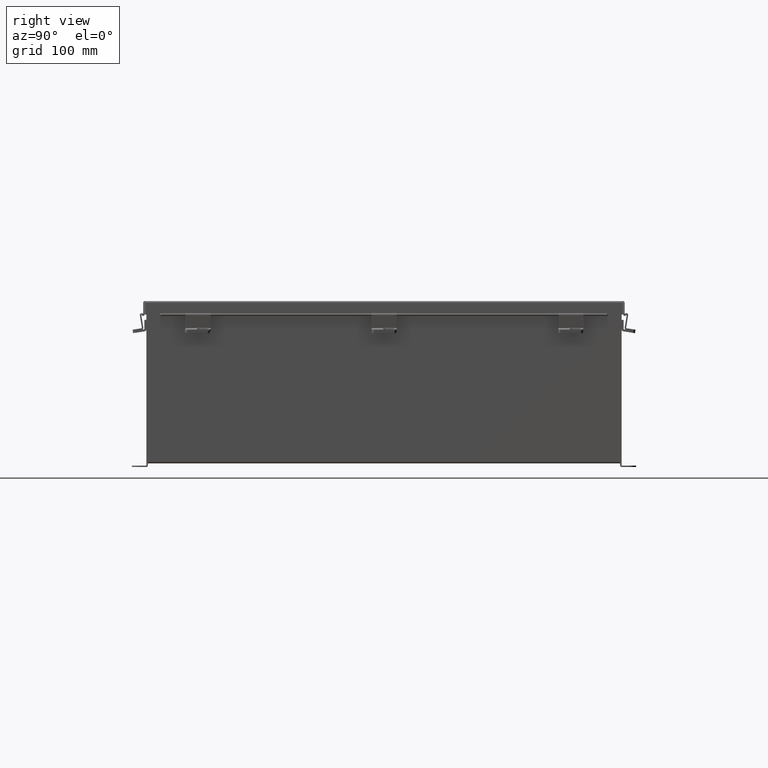
[diagram: clean part render]
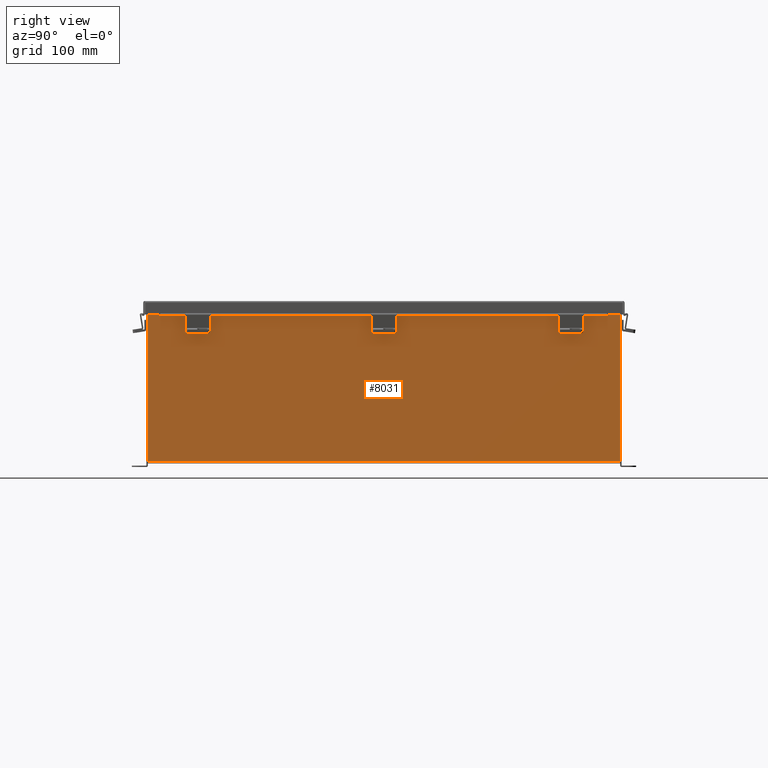
[diagram: same view with one face highlighted and labeled with its STEP entity id]
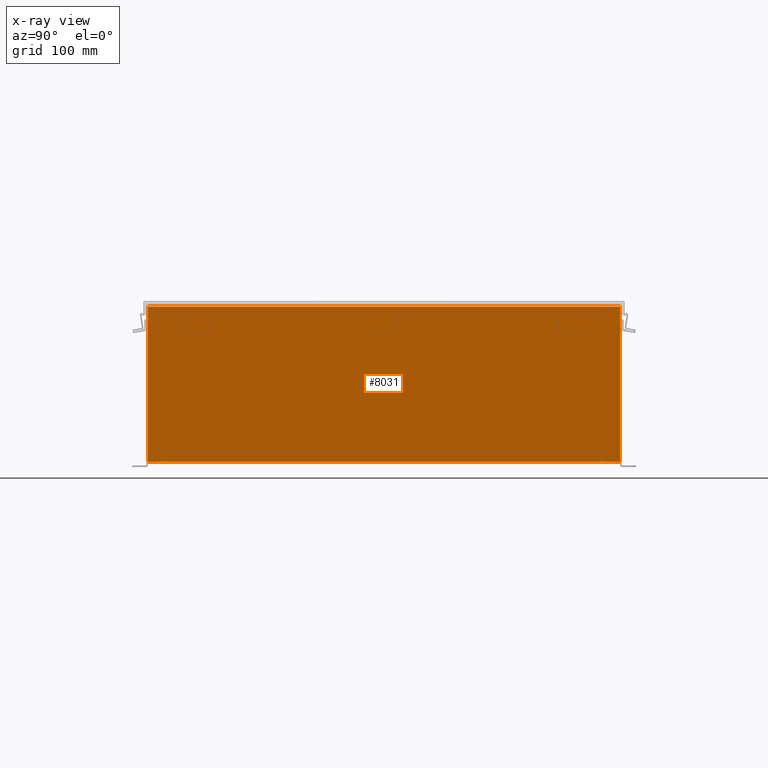
[diagram: x-ray of the same camera — body ghosted, the highlighted face saturated]
A machine part, right view. The second image highlights one B-rep face of the part: STEP entity #8031.
The next image is the same camera in x-ray: the body ghosted, the highlighted face saturated — about 0% of this face is hidden behind the body in this view.
In plain terms, the highlighted planar face has unit normal (-1, 0, 0).
Its self-contained STEP definition (entity closure, byte-faithful):
#132 = ORIENTED_EDGE ( 'NONE', *, *, #2894, .T. ) ;
#165 = DIRECTION ( 'NONE',  ( 3.618986973493534200E-015, 0.0000000000000000000, 1.000000000000000000 ) ) ;
#187 = EDGE_CURVE ( 'NONE', #790, #3802, #8609, .T. ) ;
#293 = CARTESIAN_POINT ( 'NONE',  ( 12.00000000000000200, -11.92530000000000000, 0.01299999999999982600 ) ) ;
#649 = EDGE_CURVE ( 'NONE', #4219, #790, #5749, .T. ) ;
#790 = VERTEX_POINT ( 'NONE', #4394 ) ;
#864 = LINE ( 'NONE', #293, #7038 ) ;
#1329 = CARTESIAN_POINT ( 'NONE',  ( 12.00000000000000200, -11.92530000000000000, 0.01299999999999984300 ) ) ;
#1715 = VECTOR ( 'NONE', #4971, 39.37007874015748100 ) ;
#2013 = AXIS2_PLACEMENT_3D ( 'NONE', #2965, #5460, #165 ) ;
#2193 = CARTESIAN_POINT ( 'NONE',  ( 12.00000000000000200, 11.92529999999999800, 0.01299999999999982600 ) ) ;
#2373 = VECTOR ( 'NONE', #8399, 39.37007874015748100 ) ;
#2894 = EDGE_CURVE ( 'NONE', #8175, #4219, #7910, .T. ) ;
#2965 = CARTESIAN_POINT ( 'NONE',  ( 12.00000000000000200, 0.0000000000000000000, -4.369249384866780800E-014 ) ) ;
#3802 = VERTEX_POINT ( 'NONE', #1329 ) ;
#4219 = VERTEX_POINT ( 'NONE', #8893 ) ;
#4394 = CARTESIAN_POINT ( 'NONE',  ( 12.00000000000003000, -11.92530000000000000, 7.837600000000000100 ) ) ;
#4603 = ORIENTED_EDGE ( 'NONE', *, *, #649, .T. ) ;
#4758 = ORIENTED_EDGE ( 'NONE', *, *, #187, .T. ) ;
#4971 = DIRECTION ( 'NONE',  ( -0.0000000000000000000, -1.000000000000000000, -0.0000000000000000000 ) ) ;
#5139 = ORIENTED_EDGE ( 'NONE', *, *, #9963, .F. ) ;
#5358 = CARTESIAN_POINT ( 'NONE',  ( 12.00000000000002700, 11.92530000000000000, 7.837600000000000100 ) ) ;
#5379 = EDGE_LOOP ( 'NONE', ( #4603, #4758, #5139, #132 ) ) ;
#5436 = FACE_OUTER_BOUND ( 'NONE', #5379, .T. ) ;
#5460 = DIRECTION ( 'NONE',  ( -1.000000000000000000, 0.0000000000000000000, 3.618986973493534200E-015 ) ) ;
#5529 = VECTOR ( 'NONE', #7584, 39.37007874015748100 ) ;
#5692 = DIRECTION ( 'NONE',  ( -0.0000000000000000000, -1.000000000000000000, -0.0000000000000000000 ) ) ;
#5749 = LINE ( 'NONE', #5358, #1715 ) ;
#6666 = CARTESIAN_POINT ( 'NONE',  ( 12.00000000000000200, -11.92530000000000000, -4.369249384866780800E-014 ) ) ;
#6964 = PLANE ( 'NONE',  #2013 ) ;
#7038 = VECTOR ( 'NONE', #5692, 39.37007874015748100 ) ;
#7584 = DIRECTION ( 'NONE',  ( -3.618986973493534200E-015, 0.0000000000000000000, -1.000000000000000000 ) ) ;
#7910 = LINE ( 'NONE', #8220, #2373 ) ;
#8031 = ADVANCED_FACE ( 'NONE', ( #5436 ), #6964, .F. ) ;
#8175 = VERTEX_POINT ( 'NONE', #2193 ) ;
#8220 = CARTESIAN_POINT ( 'NONE',  ( 12.00000000000000200, 11.92530000000000000, -4.037159113136968800E-014 ) ) ;
#8399 = DIRECTION ( 'NONE',  ( 3.618986973493534200E-015, -2.783836133456565100E-016, 1.000000000000000000 ) ) ;
#8609 = LINE ( 'NONE', #6666, #5529 ) ;
#8893 = CARTESIAN_POINT ( 'NONE',  ( 12.00000000000002700, 11.92529999999999800, 7.837600000000000100 ) ) ;
#9963 = EDGE_CURVE ( 'NONE', #8175, #3802, #864, .T. ) ;